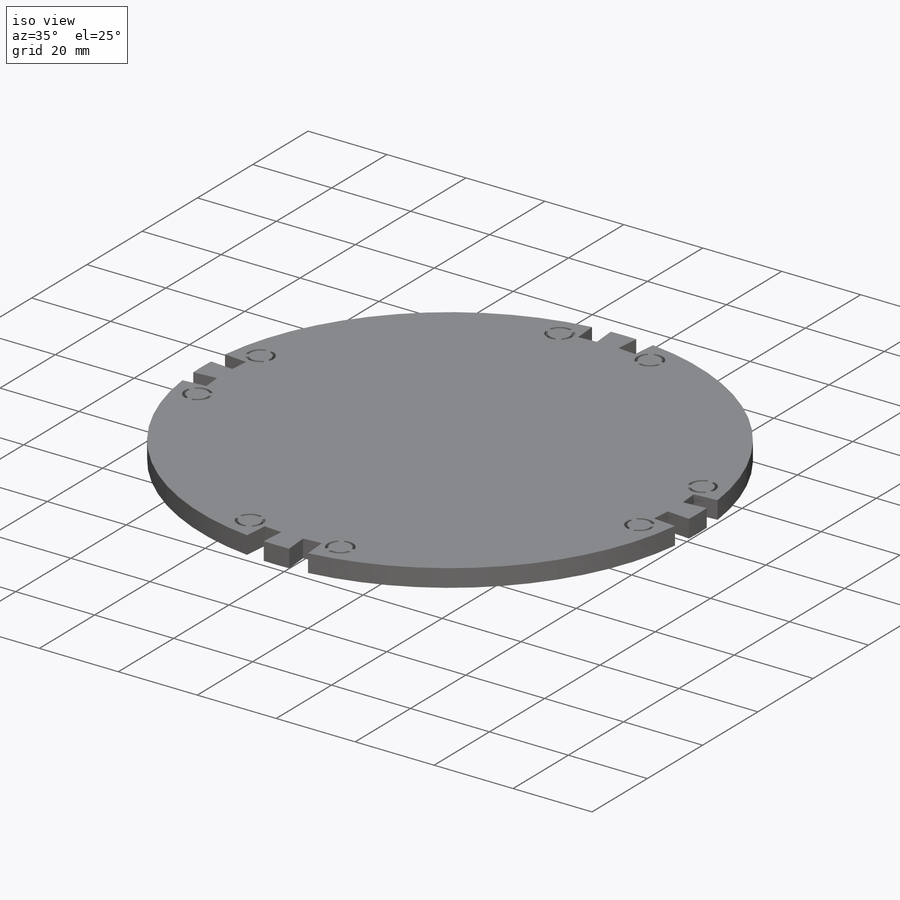
[diagram: iso view]
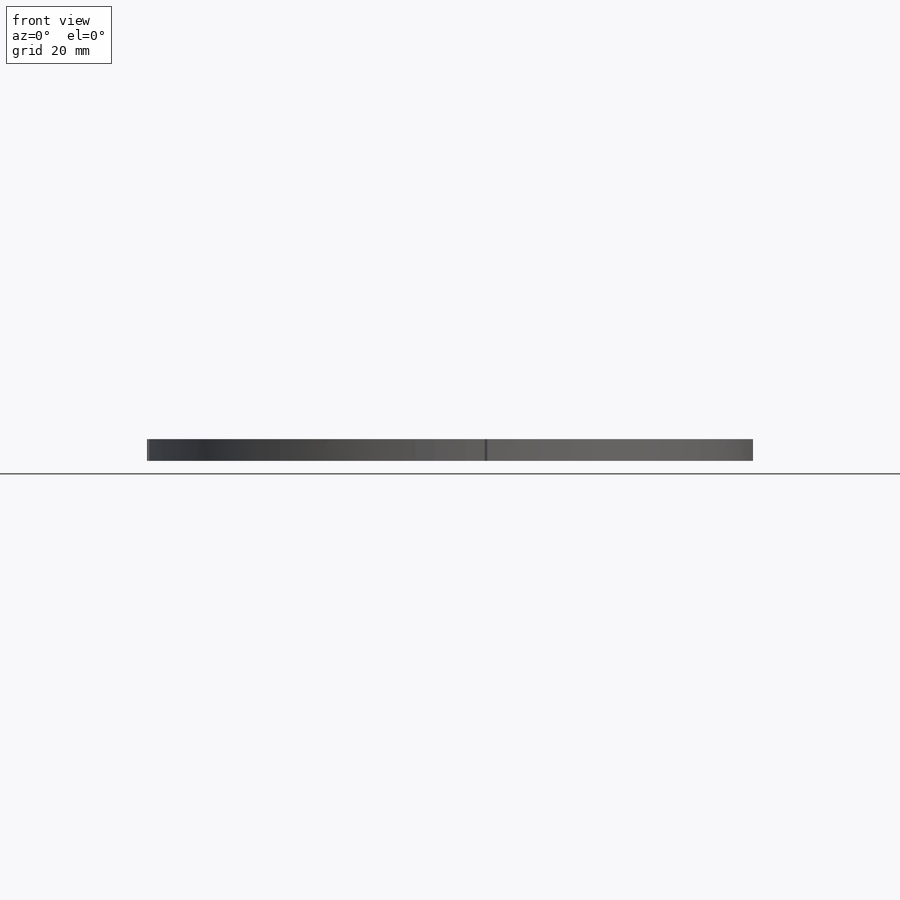
[diagram: front view]
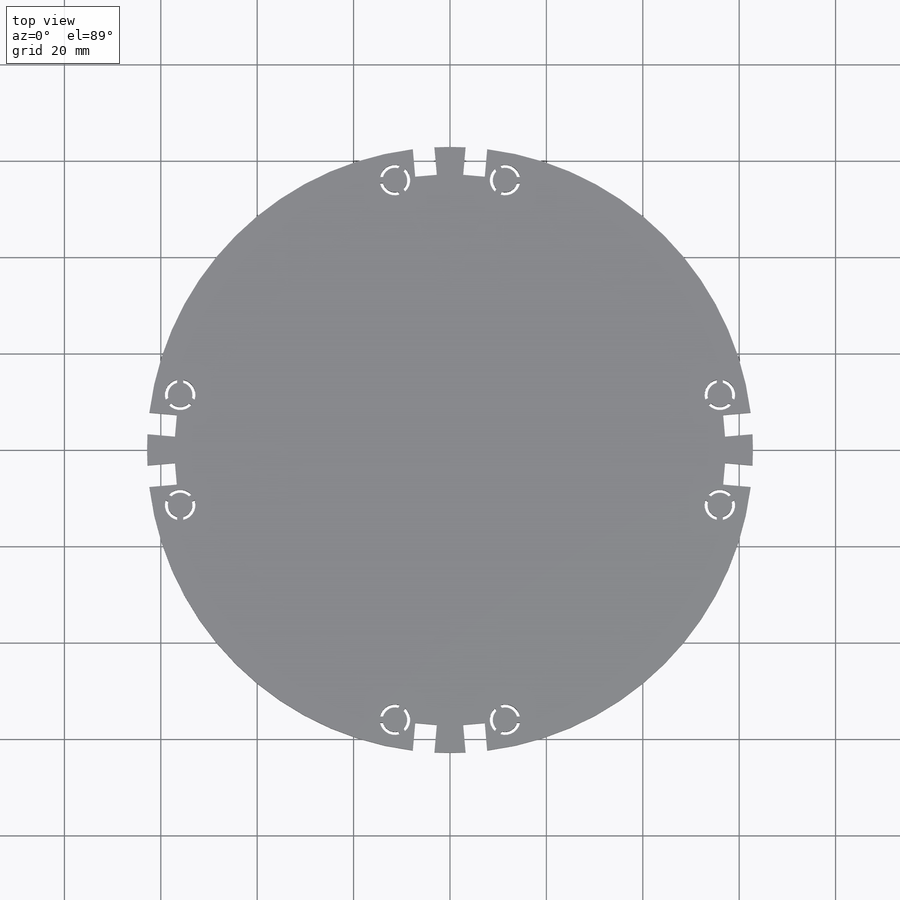
[diagram: top view]
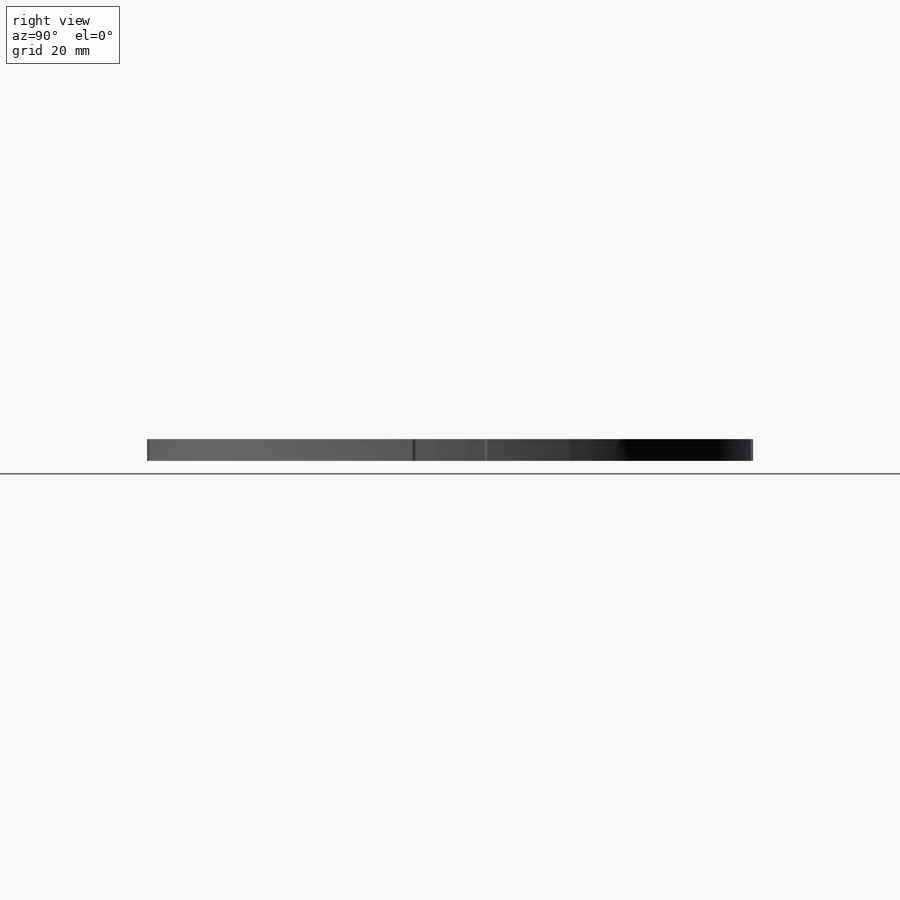
[diagram: right view]
SOLIDWORKS PART (.sldprt)
format: sldprt  version: not decoded by parser v0  size: 520,704 bytes
history: native  units: mm
features: sketch x4, cut_extrude x3, pattern_circular x2, material x1, extrude x1, mirror x1 (+12 scaffold rows collapsed)
feature tree (24):
  scaffold x12  (default folders/planes/origin — collapsed)
  material  "ABS PC"
  sketch  "Sketch2"  dims[c1.D4=125.73mm c1.D1=110.0mm c2.D1=5.0deg c2.D2=~4.50342mm c2.D3=5.7277mm c2.D5=~13.781914mm c3.D5=5.0deg]
  extrude  "Boss-Extrude1"  Depth=4.50342mm
  sketch  "Sketch3"  dims[D1=0.0mm]
  cut_extrude  "Cut-Extrude1"  Depth=4.50342mm
  pattern_circular  "CirPattern1"  Count=4 Angle=90deg
  sketch  "Sketch4"  dims[c1.D4=38.1mm c1.D1=~87.136892mm c2.D1=30.0deg c2.D2=~75.462762mm c3.D2=60.0deg c3.D3=101.6mm]
  cut_extrude  "Cut-Extrude2"  [1 undecoded]
  sketch  "Sketch5"  dims[c1.D2=62.865mm c1.D3=6.35mm c1.D12=~4.141956mm c1.D1=11.43mm c2.D2=57.15mm c2.D4=1.27mm c2.D5=0.635mm c2.D6=~1.830213mm c3.D6=120.0deg c3.D7=3.175mm c4.D7=120.0deg c4.D8=1.27mm c4.D9=0.635mm c4.D10=1.27mm c4.D11=0.635mm c4.D12=0.635mm]
  cut_extrude  "Cut-Extrude3"  [1 undecoded]
  mirror  "Mirror1"
  pattern_circular  "CirPattern2"  Count=4 Angle=360deg
decode coverage: 8 of 11 modeling features carry decoded parameters
note: ~ marks probable driven/reference dimensions
note: 2 parameter values undecoded
note: suppression state not decoded; provenance and decode notes live in map.json
